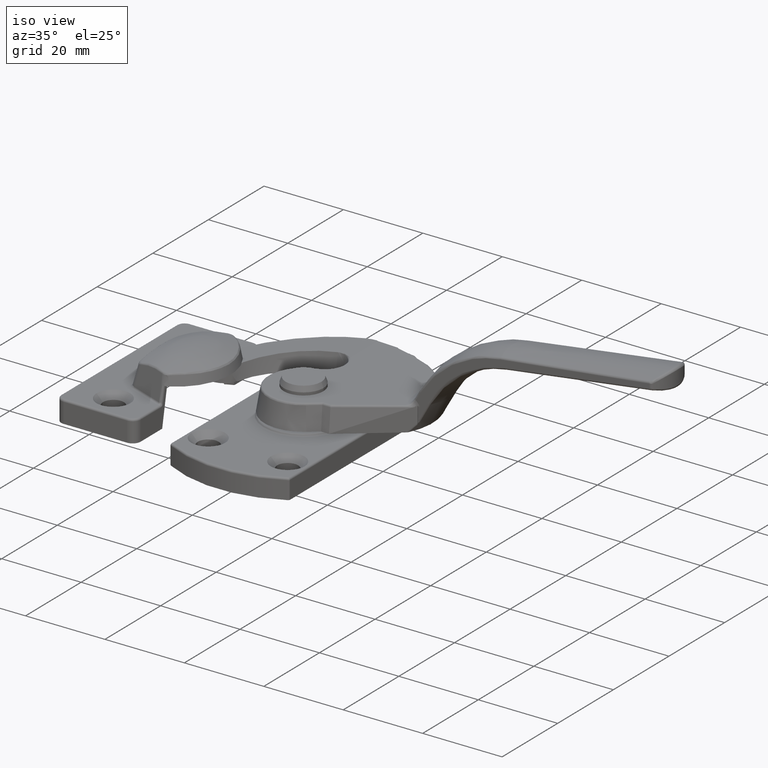
[diagram: clean part render]
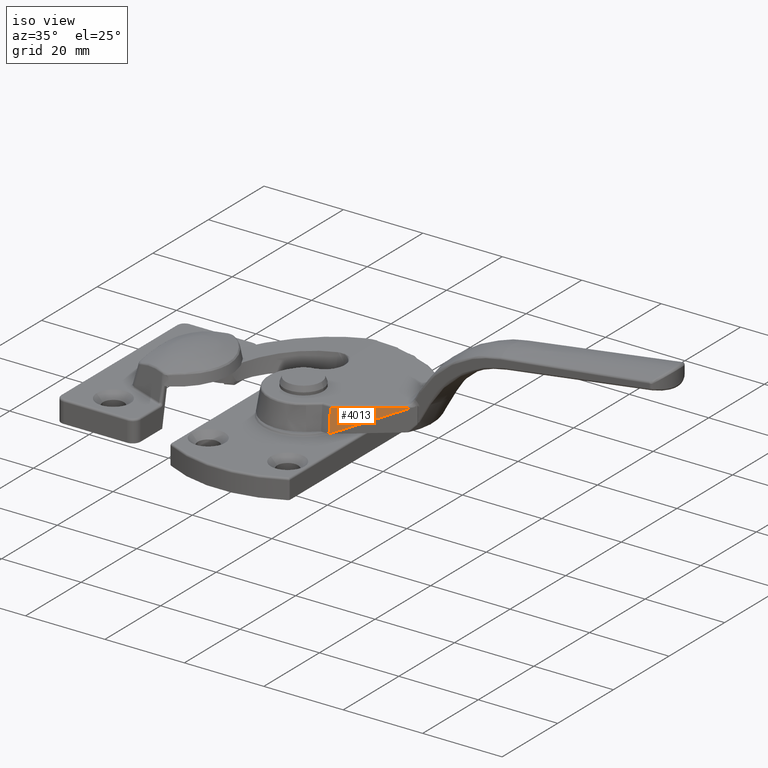
[diagram: same view with one face highlighted and labeled with its STEP entity id]
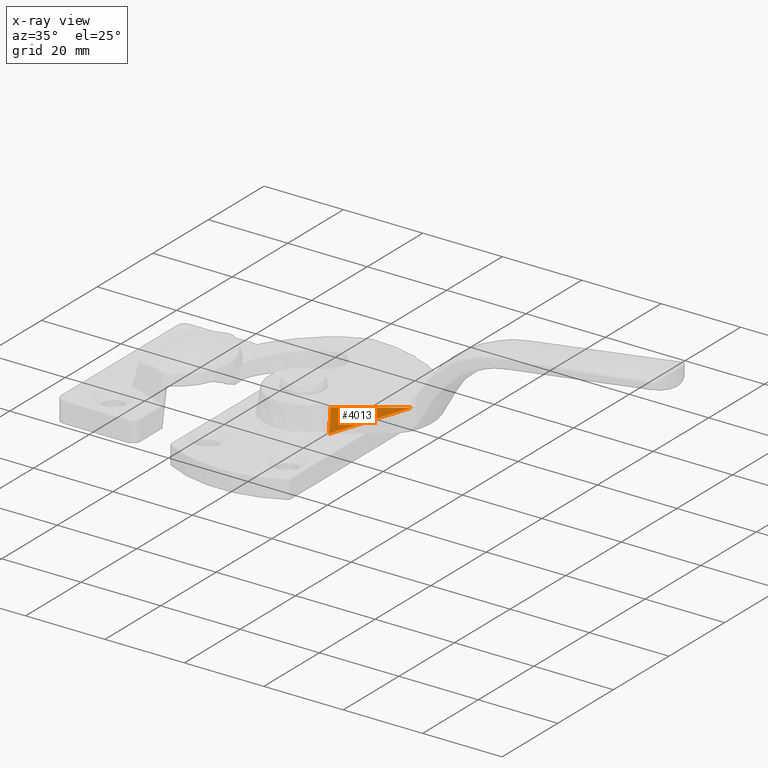
[diagram: x-ray of the same camera — body ghosted, the highlighted face saturated]
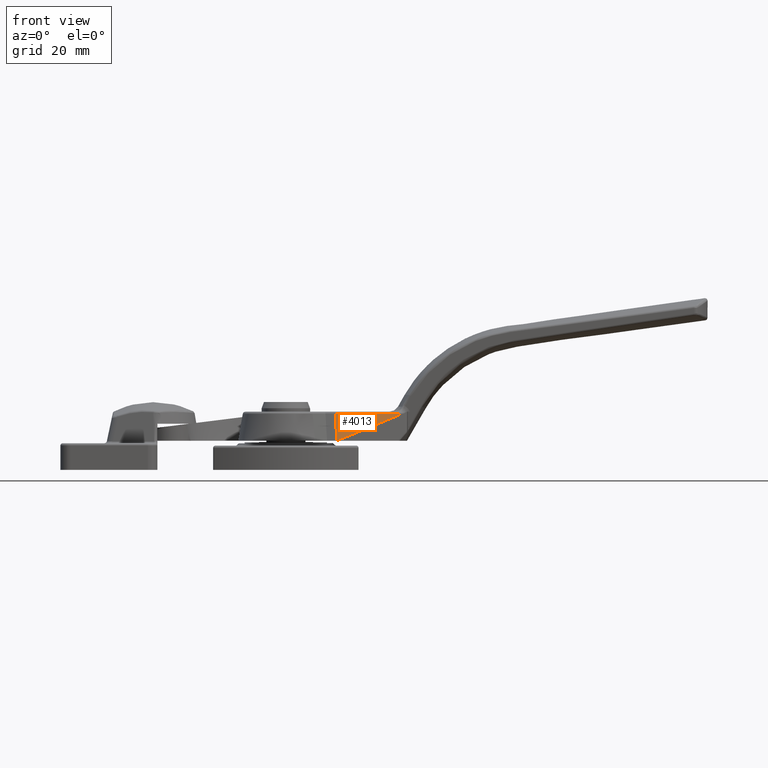
[diagram: same view with one face highlighted and labeled with its STEP entity id]
A machine part, iso view. The second image highlights one B-rep face of the part: STEP entity #4013.
The next image is the same camera in x-ray: the body ghosted, the highlighted face saturated — about 0% of this face is hidden behind the body in this view.
A second angle (front view) of the same face is appended — the face is thin or edge-on in the first view.
In plain terms, the highlighted planar face has unit normal (-0.5558, 0.8149, -0.1644).
Its self-contained STEP definition (entity closure, byte-faithful):
#215=PLANE('',#4478);
#397=LINE('',#7838,#586);
#414=LINE('',#8845,#603);
#419=LINE('',#8897,#608);
#586=VECTOR('',#5434,16.676758786129);
#603=VECTOR('',#5539,17.8828945469047);
#608=VECTOR('',#5570,5.66647514848356);
#960=FACE_OUTER_BOUND('',#1267,.T.);
#1267=EDGE_LOOP('',(#3630,#3631,#3632));
#1926=VERTEX_POINT('',#7835);
#1927=VERTEX_POINT('',#7837);
#1981=VERTEX_POINT('',#8804);
#2441=EDGE_CURVE('',#1926,#1927,#397,.T.);
#2541=EDGE_CURVE('',#1927,#1981,#414,.T.);
#2554=EDGE_CURVE('',#1926,#1981,#419,.T.);
#3630=ORIENTED_EDGE('',*,*,#2441,.F.);
#3631=ORIENTED_EDGE('',*,*,#2554,.T.);
#3632=ORIENTED_EDGE('',*,*,#2541,.F.);
#4013=ADVANCED_FACE('',(#960),#215,.F.);
#4478=AXIS2_PLACEMENT_3D('',#8896,#5568,#5569);
#5434=DIRECTION('',(0.826142692805721,0.563460957940932,9.12597704657332E-18));
#5539=DIRECTION('',(-0.754369792183845,-0.577483082292461,-0.312153017455384));
#5568=DIRECTION('center_axis',(-0.555794465229574,0.814902132401888,-0.164398987305357));
#5569=DIRECTION('ref_axis',(-0.0926324108715946,0.135817022066981,0.986393923832144));
#5570=DIRECTION('',(0.0506605888718692,-0.164187887160227,-0.98512732296136));
#7835=CARTESIAN_POINT('',(10.21293303215,-4.91963341772454,5.58219949365268));
#7837=CARTESIAN_POINT('',(23.9903154429941,4.47706906325757,5.58219949365268));
#7838=CARTESIAN_POINT('',(9.23811690267699,-5.584495353698,5.58219949365268));
#8804=CARTESIAN_POINT('',(10.5,-5.85,0.));
#8845=CARTESIAN_POINT('',(17.0435635792779,-0.840789260001073,2.70768148108044));
#8896=CARTESIAN_POINT('Origin',(10.5,-5.85,-1.11022302462516E-15));
#8897=CARTESIAN_POINT('',(10.4974335047352,-5.84168214495082,0.0499071302949894));